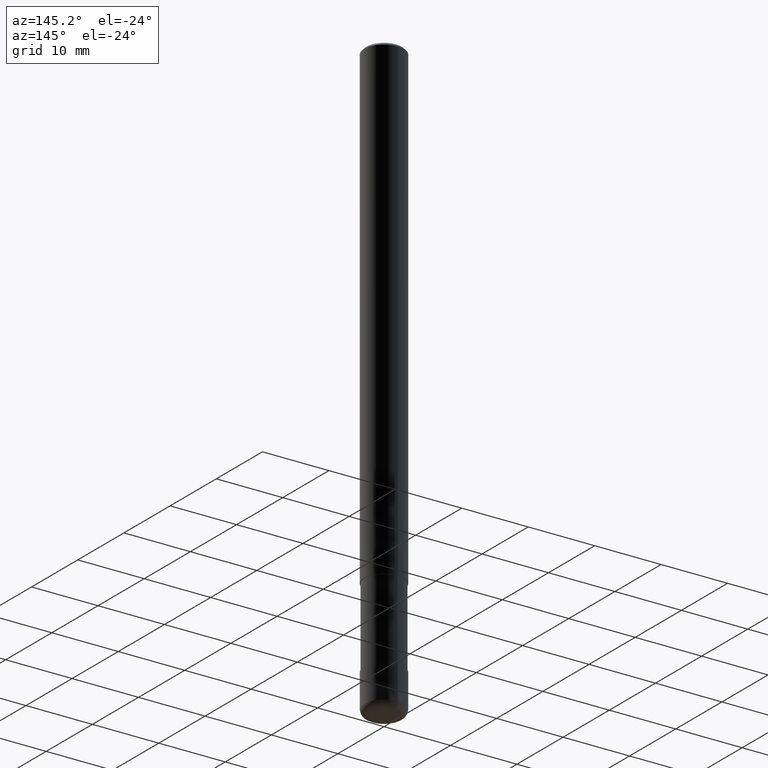
[diagram: clean part render]
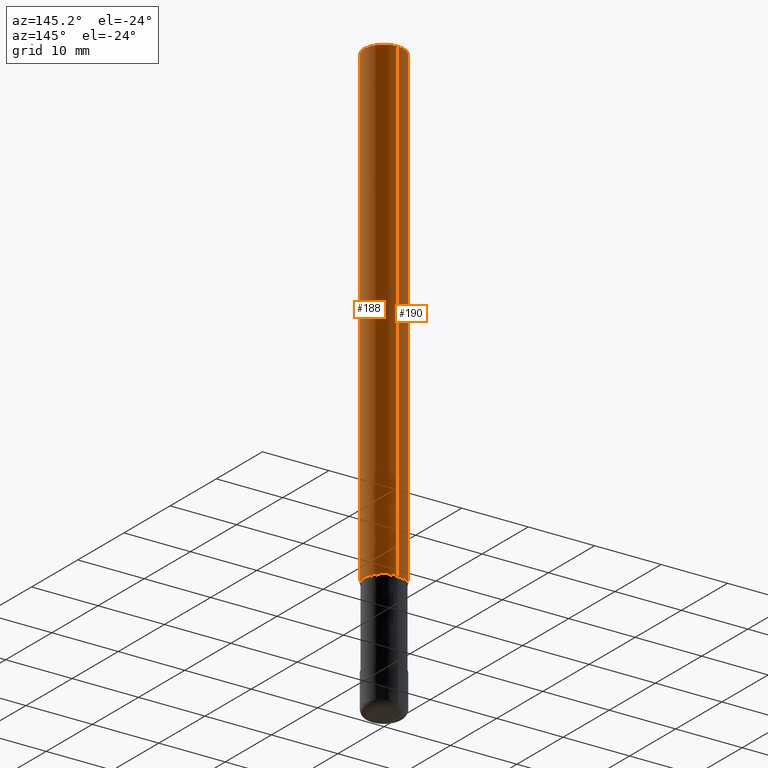
[diagram: same view with one multi-face feature highlighted, each face labeled with its STEP entity id]
A machine part, auxiliary view. The highlighted faces form ONE feature: a constant-radius fillet chain: 2 tangent blend faces with common blend radius 3 mm. The faces share edges in the B-rep.
Their STEP definitions:
[1] entity #190 (Cylinder):
#122=EDGE_CURVE('',#166,#160,#262,.T.);
#134=EDGE_CURVE('',#160,#162,#276,.T.);
#158=EDGE_CURVE('',#174,#166,#305,.T.);
#160=VERTEX_POINT('',#307);
#162=VERTEX_POINT('',#309);
#166=VERTEX_POINT('',#313);
#174=VERTEX_POINT('',#322);
#180=EDGE_CURVE('',#174,#162,#329,.T.);
#190=ADVANCED_FACE('',(#340),#341,.T.);
#262=CIRCLE('',#416,3.0);
#276=LINE('',#435,#436);
#305=LINE('',#469,#470);
#307=CARTESIAN_POINT('',(0.0,3.0,-0.400000000000006));
#309=CARTESIAN_POINT('',(0.0,3.0,-72.0));
#313=CARTESIAN_POINT('',(3.67381906146713E-016,-3.0,-0.400000000000006));
#322=CARTESIAN_POINT('',(3.67381906146713E-016,-3.0,-72.0));
#329=CIRCLE('',#497,3.0);
#340=FACE_OUTER_BOUND('',#510,.T.);
#341=CYLINDRICAL_SURFACE('',#511,3.0);
#416=AXIS2_PLACEMENT_3D('',#575,#576,#577);
#435=CARTESIAN_POINT('',(-3.67381906146713E-016,3.0,-36.2));
#436=VECTOR('',#599,1.0);
#469=CARTESIAN_POINT('',(3.67381906146713E-016,-3.0,-36.2));
#470=VECTOR('',#640,1.0);
#497=AXIS2_PLACEMENT_3D('',#661,#662,#663);
#510=EDGE_LOOP('',(#679,#680,#681,#682));
#511=AXIS2_PLACEMENT_3D('',#683,#684,#685);
#575=CARTESIAN_POINT('',(0.0,0.0,-0.400000000000006));
#576=DIRECTION('',(0.0,0.0,-1.0));
#577=DIRECTION('',(0.0,1.0,0.0));
#599=DIRECTION('',(0.0,0.0,-1.0));
#640=DIRECTION('',(-0.0,-0.0,1.0));
#661=CARTESIAN_POINT('',(0.0,0.0,-72.0));
#662=DIRECTION('',(0.0,0.0,-1.0));
#663=DIRECTION('',(0.0,1.0,0.0));
#679=ORIENTED_EDGE('',*,*,#134,.T.);
#680=ORIENTED_EDGE('',*,*,#180,.F.);
#681=ORIENTED_EDGE('',*,*,#158,.T.);
#682=ORIENTED_EDGE('',*,*,#122,.T.);
#683=CARTESIAN_POINT('',(0.0,0.0,-36.2));
#684=DIRECTION('',(-0.0,-0.0,1.0));
#685=DIRECTION('',(0.0,1.0,0.0));
[2] entity #188 (Cylinder):
#134=EDGE_CURVE('',#160,#162,#276,.T.);
#140=EDGE_CURVE('',#160,#166,#284,.T.);
#158=EDGE_CURVE('',#174,#166,#305,.T.);
#160=VERTEX_POINT('',#307);
#162=VERTEX_POINT('',#309);
#166=VERTEX_POINT('',#313);
#174=VERTEX_POINT('',#322);
#184=EDGE_CURVE('',#162,#174,#333,.T.);
#188=ADVANCED_FACE('',(#337),#338,.T.);
#276=LINE('',#435,#436);
#284=CIRCLE('',#445,3.0);
#305=LINE('',#469,#470);
#307=CARTESIAN_POINT('',(0.0,3.0,-0.400000000000006));
#309=CARTESIAN_POINT('',(0.0,3.0,-72.0));
#313=CARTESIAN_POINT('',(3.67381906146713E-016,-3.0,-0.400000000000006));
#322=CARTESIAN_POINT('',(3.67381906146713E-016,-3.0,-72.0));
#333=CIRCLE('',#503,3.0);
#337=FACE_OUTER_BOUND('',#507,.T.);
#338=CYLINDRICAL_SURFACE('',#508,3.0);
#435=CARTESIAN_POINT('',(-3.67381906146713E-016,3.0,-36.2));
#436=VECTOR('',#599,1.0);
#445=AXIS2_PLACEMENT_3D('',#608,#609,#610);
#469=CARTESIAN_POINT('',(3.67381906146713E-016,-3.0,-36.2));
#470=VECTOR('',#640,1.0);
#503=AXIS2_PLACEMENT_3D('',#667,#668,#669);
#507=EDGE_LOOP('',(#671,#672,#673,#674));
#508=AXIS2_PLACEMENT_3D('',#675,#676,#677);
#599=DIRECTION('',(0.0,0.0,-1.0));
#608=CARTESIAN_POINT('',(0.0,0.0,-0.400000000000006));
#609=DIRECTION('',(0.0,0.0,-1.0));
#610=DIRECTION('',(0.0,1.0,0.0));
#640=DIRECTION('',(-0.0,-0.0,1.0));
#667=CARTESIAN_POINT('',(0.0,0.0,-72.0));
#668=DIRECTION('',(0.0,0.0,-1.0));
#669=DIRECTION('',(0.0,1.0,0.0));
#671=ORIENTED_EDGE('',*,*,#134,.F.);
#672=ORIENTED_EDGE('',*,*,#140,.T.);
#673=ORIENTED_EDGE('',*,*,#158,.F.);
#674=ORIENTED_EDGE('',*,*,#184,.F.);
#675=CARTESIAN_POINT('',(0.0,0.0,-36.2));
#676=DIRECTION('',(-0.0,-0.0,1.0));
#677=DIRECTION('',(0.0,1.0,0.0));